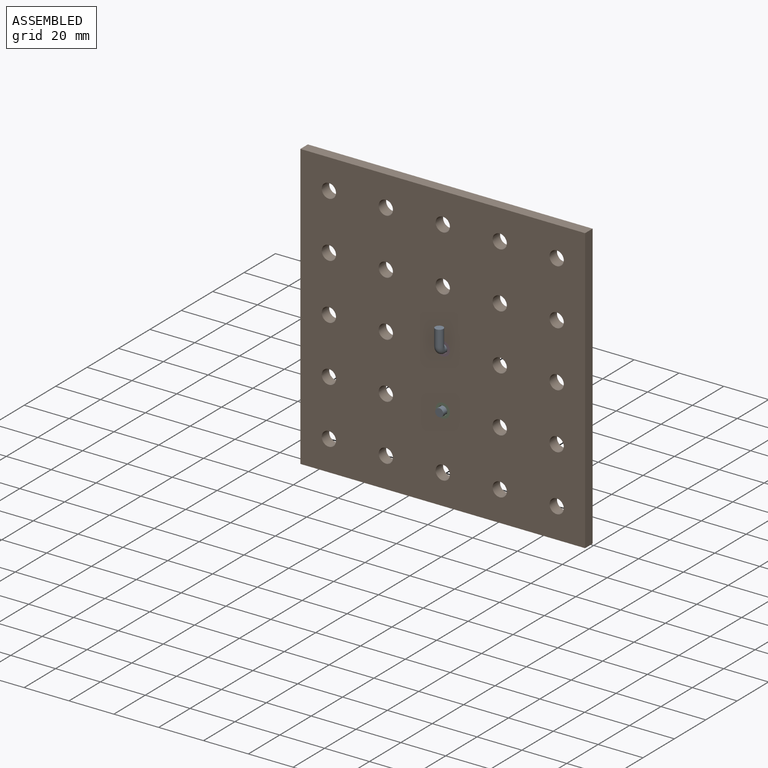
[diagram: assembled view]
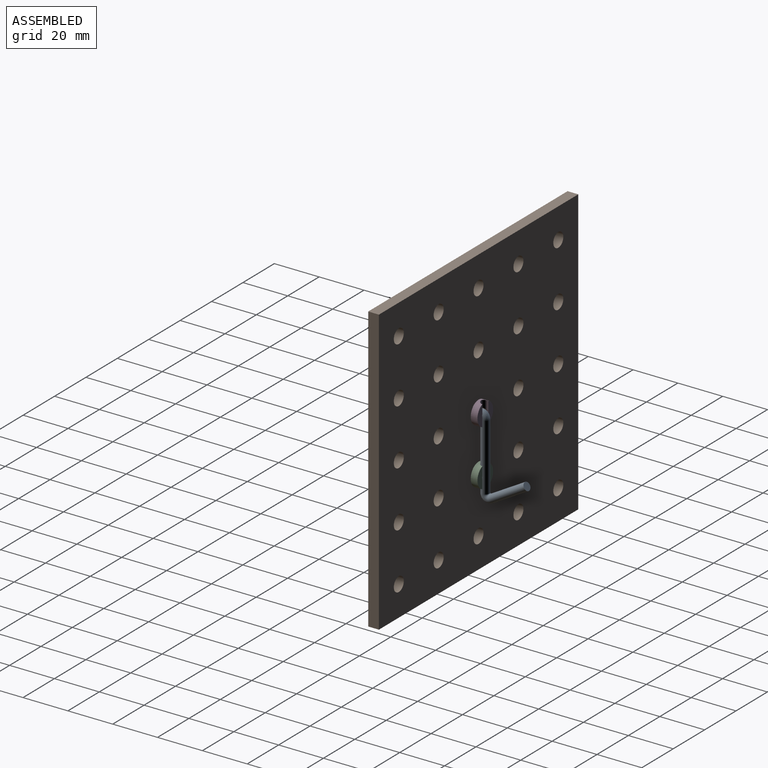
[diagram: assembled view, second angle]
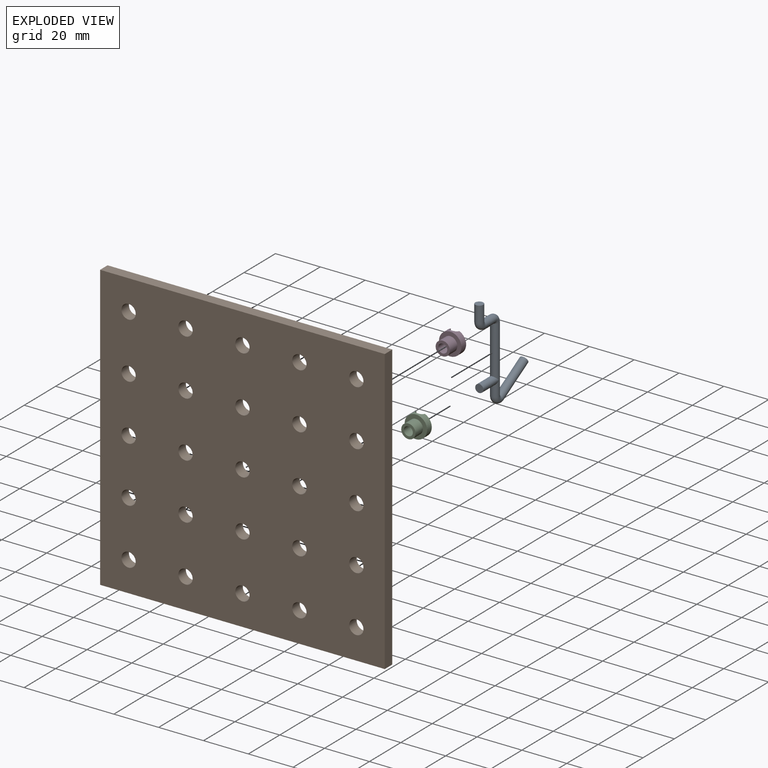
[diagram: exploded view]
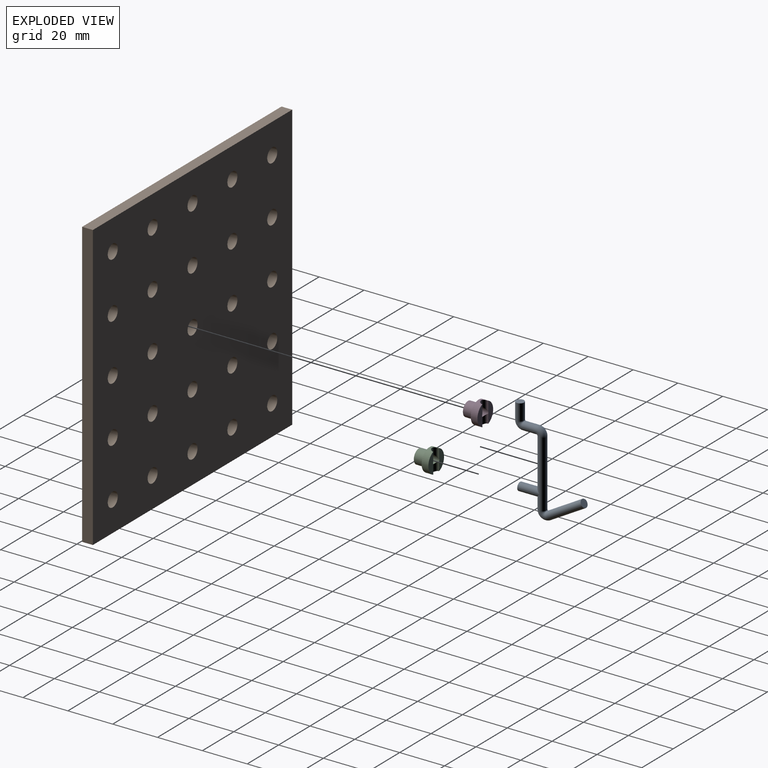
[diagram: exploded view, second angle]
ASSEMBLY  parts=4 mates=6
PART A: 11 faces, bbox 3.6x31.6x44.9 mm
  f0: plane 3.62x3.62mm, normal (0,0,1), area 10.3mm2, adj f2
  f1: plane 3.62x3.14mm, normal (0,0.87,0.5), area 10.3mm2, adj f8
  f2: cylinder r=1.81mm len=7.25mm, axis (0,0,-1), area 82.5mm2, adj f0,f3
  f3: torus R=2mm, axis (1,0,0), area 35.7mm2, adj f2,f4
  f4: cylinder r=1.81mm len=6mm, axis (0,1,0), area 68.2mm2, adj f3,f5
  f5: torus R=2mm, axis (-1,0,0), area 35.7mm2, adj f4,f6
  f6: cylinder r=1.81mm len=29.54mm, axis (0,0,-1), area 322.6mm2, adj f5,f7,f10
  f7: torus R=2mm, axis (1,0,0), area 47.6mm2, adj f6,f8
  f8: cylinder r=1.81mm len=17.4mm, axis (0,0.87,0.5), area 204.7mm2, adj f1,f7
  f9: plane 3.63x3.63mm, normal (0,-1,0), area 10.3mm2, adj f10
  f10: cylinder r=1.81mm len=10mm, axis (0,-1,0), area 101mm2, adj f6,f9
PART B: 31 faces, bbox 127x4.8x127 mm
  f0: cylinder r=3.17mm len=6.35mm, axis (0,1,0), area 95mm2, adj f28,f29
  f1: cylinder r=3.17mm len=6.35mm, axis (0,1,0), area 95mm2, adj f28,f29
  f2: cylinder r=3.17mm len=6.35mm, axis (0,1,0), area 95mm2, adj f28,f29
  f3: cylinder r=3.17mm len=6.35mm, axis (0,1,0), area 95mm2, adj f28,f29
  f4: cylinder r=3.17mm len=6.35mm, axis (0,1,0), area 95mm2, adj f28,f29
  f5: cylinder r=3.17mm len=6.35mm, axis (0,1,0), area 95mm2, adj f28,f29
  f6: cylinder r=3.17mm len=6.35mm, axis (0,1,0), area 95mm2, adj f28,f29
  f7: cylinder r=3.17mm len=6.35mm, axis (0,1,0), area 95mm2, adj f28,f29
  f8: cylinder r=3.17mm len=6.35mm, axis (0,1,0), area 95mm2, adj f28,f29
  f9: cylinder r=3.17mm len=6.35mm, axis (0,1,0), area 95mm2, adj f28,f29
  f10: cylinder r=3.17mm len=6.35mm, axis (0,1,0), area 95mm2, adj f28,f29
  f11: cylinder r=3.17mm len=6.35mm, axis (0,1,0), area 95mm2, adj f28,f29
  f12: cylinder r=3.17mm len=6.35mm, axis (0,1,0), area 95mm2, adj f28,f29
  f13: cylinder r=3.17mm len=6.35mm, axis (0,1,0), area 95mm2, adj f28,f29
  f14: cylinder r=3.17mm len=6.35mm, axis (0,1,0), area 95mm2, adj f28,f29
  f15: cylinder r=3.17mm len=6.35mm, axis (0,1,0), area 95mm2, adj f28,f29
  f16: cylinder r=3.17mm len=6.35mm, axis (0,1,0), area 95mm2, adj f28,f29
  f17: cylinder r=3.17mm len=6.35mm, axis (0,1,0), area 95mm2, adj f28,f29
  f18: cylinder r=3.17mm len=6.35mm, axis (0,1,0), area 95mm2, adj f28,f29
  f19: cylinder r=3.17mm len=6.35mm, axis (0,1,0), area 95mm2, adj f28,f29
  f20: cylinder r=3.17mm len=6.35mm, axis (0,1,0), area 95mm2, adj f28,f29
  f21: cylinder r=3.17mm len=6.35mm, axis (0,1,0), area 95mm2, adj f28,f29
  f22: cylinder r=3.17mm len=6.35mm, axis (0,1,0), area 95mm2, adj f28,f29
  f23: cylinder r=3.17mm len=6.35mm, axis (0,1,0), area 95mm2, adj f28,f29
  f24: plane 127x4.76mm, normal (1,0,0), area 604.8mm2, adj f25,f27,f28,f29
  f25: plane 127x4.76mm, normal (0,0,1), area 604.8mm2, adj f24,f26,f28,f29
  f26: plane 127x4.76mm, normal (-1,0,0), area 604.8mm2, adj f25,f27,f28,f29
  f27: plane 127x4.76mm, normal (0,0,-1), area 604.8mm2, adj f24,f26,f28,f29
  f28: plane 127x127mm, normal (0,-1,0), area 15337.3mm2, adj f0,f1,f2,f3,f4,f5,f6,f7
  f29: plane 127x127mm, normal (0,1,0), area 15337.3mm2, adj f0,f1,f2,f3,f4,f5,f6,f7
  f30: cylinder r=3.17mm len=6.35mm, axis (0,1,0), area 95mm2, adj f28,f29
PART C: 9 faces, bbox 10x7.8x10 mm
  f0: plane 9.27x3.13mm, normal (0,-1,0), area 20.9mm2, adj f1,f6,f7,f8
  f1: cylinder r=5mm len=10mm, axis (0,1,0), area 83mm2, adj f0,f2,f3,f7,f8
  f2: plane 9.27x3.13mm, normal (0,-1,0), area 20.9mm2, adj f1,f6,f7,f8
  f3: plane 10x10mm, normal (0,1,0), area 46.9mm2, adj f1,f4
  f4: cylinder r=3.17mm len=6.35mm, axis (0,-1,0), area 95mm2, adj f3,f5
  f5: plane 6.35x6.35mm, normal (0,1,0), area 19.1mm2, adj f4,f6
  f6: cylinder r=2mm len=7.76mm, axis (0,-1,0), area 84.4mm2, adj f0,f2,f5,f7,f8
  f7: cylinder r=1.88mm len=4.3mm, axis (0,0,1), area 20mm2, adj f0,f1,f2,f6
  f8: cylinder r=1.88mm len=4.3mm, axis (0,0,1), area 20mm2, adj f0,f1,f2,f6
PART D: same geometry as C
PLACE A t=(-1.36,-0.77,-0.19)mm
PLACE B t=(-1.36,-3.77,-0.19)mm fixed
PLACE C rot(axis=(1,0,0),180deg) t=(-1.36,-3.77,-25.19)mm
PLACE D rot(axis=(0,0,-1),180deg) t=(-1.36,-3.77,-0.19)mm
MATE cylindrical D.f1 <-> A.f4  axis (0,1,0) through (-1.36,-0.77,-0.19)mm
MATE cylindrical A.f6 <-> C.f7  axis (0,0,-1) through (-1.36,-0.77,-16.96)mm
MATE planar B.f30 <-> D.f1  axis (0,1,0) through (-1.36,-3.77,-0.19)mm
MATE slider D.f4 <-> B.f30  axis (0,1,0) through (-1.36,-3.77,-0.19)mm
MATE cylindrical C.f4 <-> B.f16  axis (0,1,0) through (-1.36,-6.15,-25.19)mm
MATE slider A.f6 <-> D.f7  axis (0,0,-1) through (-1.36,-0.77,-16.96)mm
